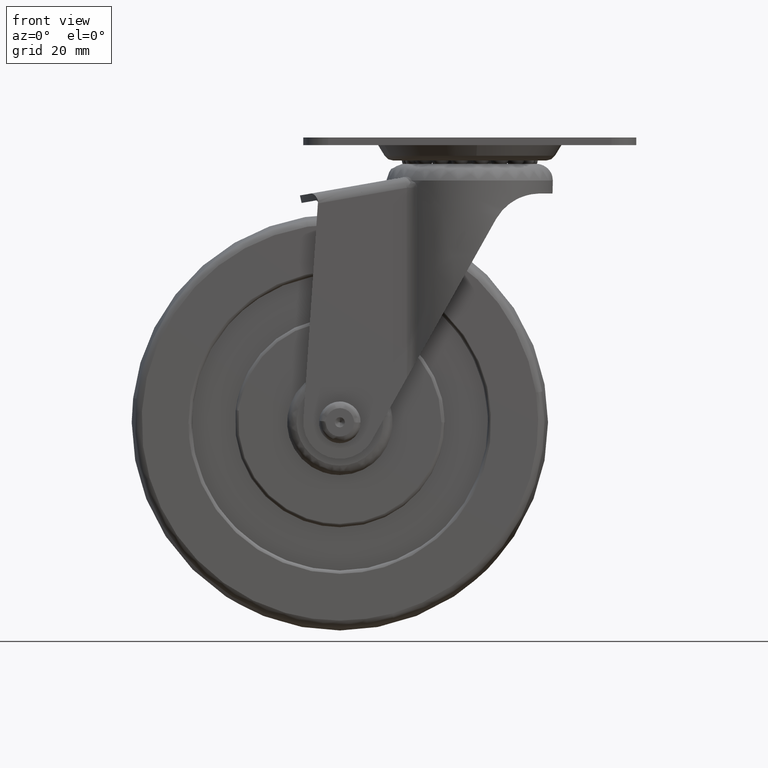
[diagram: clean part render]
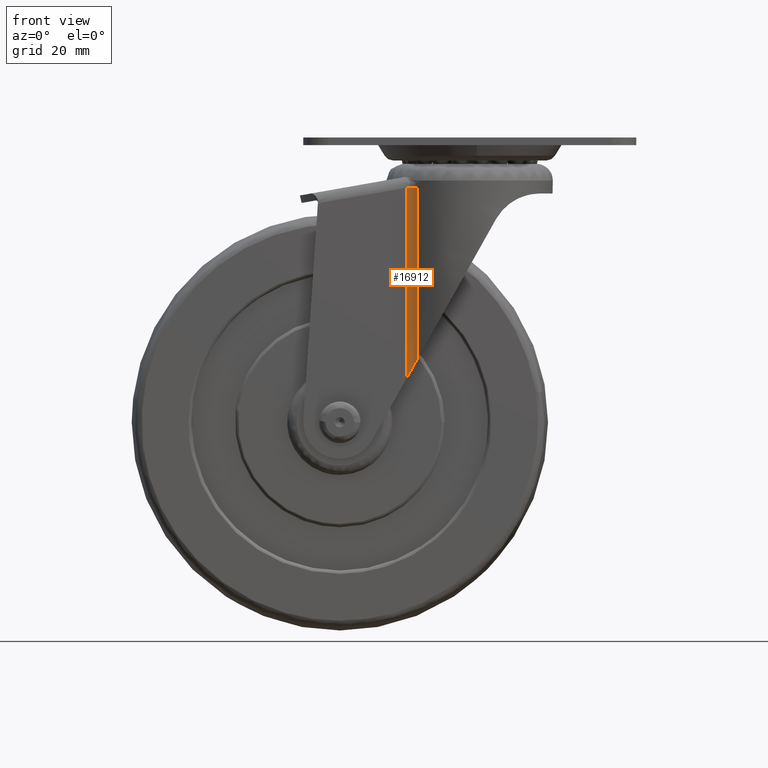
[diagram: same view with one face highlighted and labeled with its STEP entity id]
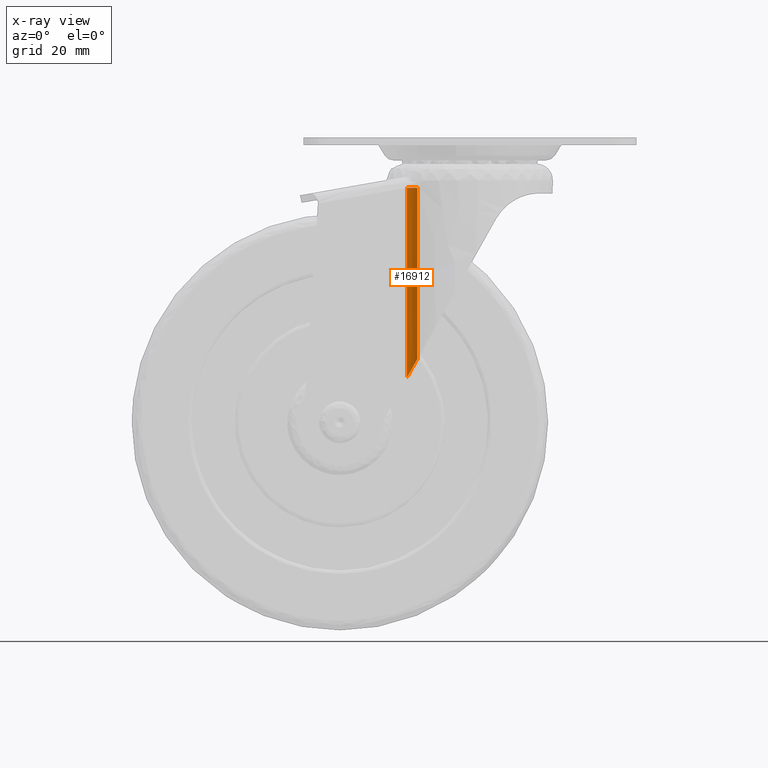
[diagram: x-ray of the same camera — body ghosted, the highlighted face saturated]
A machine part, front view. The second image highlights one B-rep face of the part: STEP entity #16912.
The next image is the same camera in x-ray: the body ghosted, the highlighted face saturated — about 0% of this face is hidden behind the body in this view.
In plain terms, the highlighted face is a freeform B-spline surface patch.
Its self-contained STEP definition (entity closure, byte-faithful):
#16807=CARTESIAN_POINT('',(20.102645687821799,-18.300000000000001,70.409651613913397));
#16808=VERTEX_POINT('',#16807);
#16809=CARTESIAN_POINT('',(23.252204739851500,-19.416666666666750,70.409651613913610));
#16810=VERTEX_POINT('',#16809);
#16811=CARTESIAN_POINT('',(20.102645687821799,-18.300000000000001,70.409651613913397));
#16812=CARTESIAN_POINT('',(21.875380613917308,-18.300000000000093,70.409651613913553));
#16813=CARTESIAN_POINT('',(23.252204739851500,-19.416666666666750,70.409651613913610));
#16821=(BOUNDED_CURVE()B_SPLINE_CURVE(2,(#16811,#16812,#16813),.UNSPECIFIED.,.F.,.U.)CURVE()GEOMETRIC_REPRESENTATION_ITEM()QUASI_UNIFORM_CURVE()RATIONAL_B_SPLINE_CURVE((1.0,0.942514367706580,1.0))REPRESENTATION_ITEM(''));
#16822=EDGE_CURVE('',#16808,#16810,#16821,.T.);
#16865=CARTESIAN_POINT('',(23.252204739851500,-19.416666666666750,70.409651613913610));
#16866=CARTESIAN_POINT('',(21.875380613917308,-18.300000000000093,70.409651613913553));
#16867=CARTESIAN_POINT('',(20.102645687821799,-18.300000000000001,70.409651613913610));
#16868=CARTESIAN_POINT('',(23.252204739851500,-19.416666666666750,51.269569277247193));
#16869=CARTESIAN_POINT('',(21.875380613917308,-18.300000000000093,51.269569277247193));
#16870=CARTESIAN_POINT('',(20.102645687821799,-18.300000000000001,51.269569277247193));
#16871=CARTESIAN_POINT('',(23.252204739851500,-19.416666666666750,32.129486940580733));
#16872=CARTESIAN_POINT('',(21.875380613917308,-18.300000000000093,32.129486940580740));
#16873=CARTESIAN_POINT('',(20.102645687821799,-18.300000000000001,32.129486940580733));
#16874=CARTESIAN_POINT('',(23.252204739851500,-19.416666666666750,12.989404603914361));
#16875=CARTESIAN_POINT('',(21.875380613917308,-18.300000000000093,12.989404603914357));
#16876=CARTESIAN_POINT('',(20.102645687821799,-18.300000000000001,12.989404603914361));
#16884=(BOUNDED_SURFACE()B_SPLINE_SURFACE(2,3,((#16865,#16868,#16871,#16874),(#16866,#16869,#16872,#16875),(#16867,#16870,#16873,#16876)),.UNSPECIFIED.,.F.,.F.,.U.)B_SPLINE_SURFACE_WITH_KNOTS((3,3),(4,4),(0.0,3.440547294284274),(0.0,57.420247009999287),.UNSPECIFIED.)GEOMETRIC_REPRESENTATION_ITEM()RATIONAL_B_SPLINE_SURFACE(((1.0,1.0,1.0,1.0),(0.942514367706580,0.942514367706580,0.942514367706580,0.942514367706580),(1.0,1.0,1.0,1.0)))REPRESENTATION_ITEM('')SURFACE());
#16885=CARTESIAN_POINT('',(23.252204739851500,-19.416666666666750,18.940361106884549));
#16886=VERTEX_POINT('',#16885);
#16887=CARTESIAN_POINT('',(20.102645687821848,-18.300000000000001,13.331871285881981));
#16888=VERTEX_POINT('',#16887);
#16889=CARTESIAN_POINT('',(23.252204739851500,-19.416666666666750,18.940361106884549));
#16890=CARTESIAN_POINT('',(22.554079677995190,-18.850455651727490,17.697194289394659));
#16891=CARTESIAN_POINT('',(21.702459903529920,-18.562849540577410,16.180696024859810));
#16892=CARTESIAN_POINT('',(20.924145890768891,-18.300000000000431,14.794734959833610));
#16893=CARTESIAN_POINT('',(20.102645687821848,-18.300000000000001,13.331871285881981));
#16894=B_SPLINE_CURVE_WITH_KNOTS('',2,(#16889,#16890,#16891,#16892,#16893),.UNSPECIFIED.,.F.,.U.,(3,2,3),(0.0,0.500000000000000,1.0),.UNSPECIFIED.);
#16895=EDGE_CURVE('',#16886,#16888,#16894,.T.);
#16896=ORIENTED_EDGE('',*,*,#16895,.F.);
#16897=CARTESIAN_POINT('',(23.252204739851500,-19.416666666666750,70.409651613913610));
#16898=CARTESIAN_POINT('',(23.252204739851649,-19.416666666666789,53.253221444904227));
#16899=CARTESIAN_POINT('',(23.252204739851649,-19.416666666666789,36.096791275894560));
#16900=CARTESIAN_POINT('',(23.252204739851500,-19.416666666666750,18.940361106884549));
#16901=QUASI_UNIFORM_CURVE('',3,(#16897,#16898,#16899,#16900),.UNSPECIFIED.,.F.,.U.);
#16902=EDGE_CURVE('',#16810,#16886,#16901,.T.);
#16903=ORIENTED_EDGE('',*,*,#16902,.F.);
#16904=ORIENTED_EDGE('',*,*,#16822,.F.);
#16905=CARTESIAN_POINT('',(20.102645687821799,-18.300000000000001,13.331871285881981));
#16906=CARTESIAN_POINT('',(20.102645687821799,-18.300000000000001,70.409651613913397));
#16907=QUASI_UNIFORM_CURVE('',1,(#16905,#16906),.UNSPECIFIED.,.F.,.U.);
#16908=EDGE_CURVE('',#16888,#16808,#16907,.T.);
#16909=ORIENTED_EDGE('',*,*,#16908,.F.);
#16910=EDGE_LOOP('',(#16896,#16903,#16904,#16909));
#16911=FACE_OUTER_BOUND('',#16910,.T.);
#16912=ADVANCED_FACE('',(#16911),#16884,.T.);